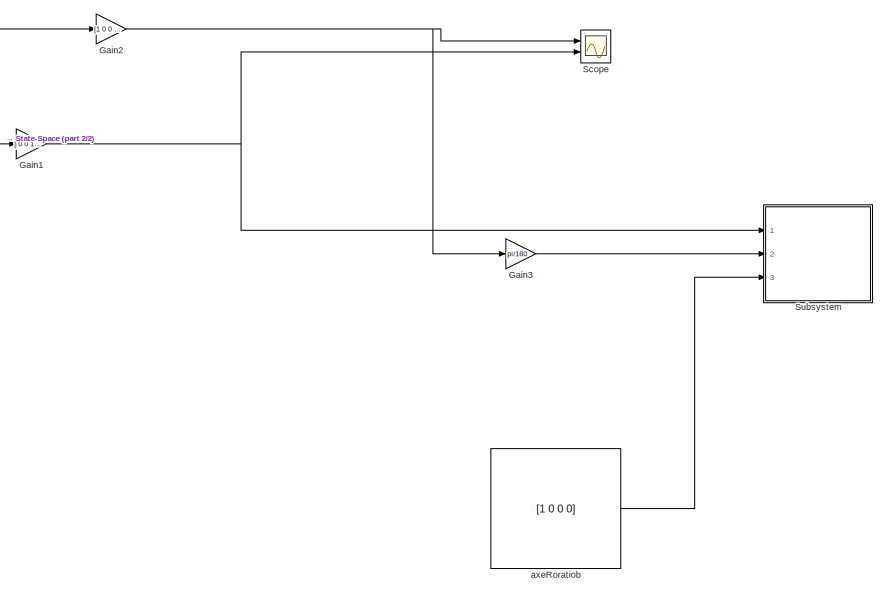
[diagram: root canvas - part 1/2, right side, full height]
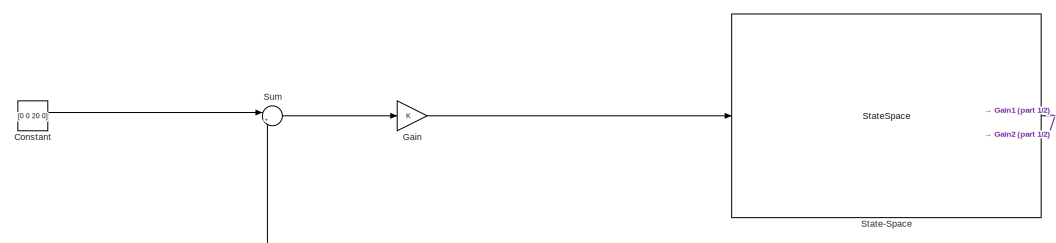
[diagram: root canvas - part 2/2, top left region]
MODEL slx_bc6a4211d6a7
KIND model
CONFIG AbsTol = auto
CONFIG EnableMultiTasking = off
CONFIG FixedStep = auto
CONFIG MaxStep = auto
CONFIG MinStep = auto
CONFIG RelTol = 1e-3
CONFIG SampleTimeConstraint = Unconstrained
CONFIG Solver = VariableStepAuto
CONFIG SolverName = VariableStepAuto
CONFIG StartTime = 0.0
CONFIG StopTime = 100
BLOCK [Constant] Constant
  Value = [0 0 20 0]
BLOCK [Gain] Gain
  Gain = K
  Multiplication = Matrix(K*u)
BLOCK [Gain] Gain1
  Gain = [ 0 0 1 0]
  Multiplication = Matrix(K*u)
BLOCK [Gain] Gain2
  Gain = [1 0 0 0]
  Multiplication = Matrix(K*u)
BLOCK [Gain] Gain3
  Gain = pi/180
BLOCK [Scope] Scope
  Floating = off
  NumInputPorts = 2
  Ports = [2]
  ScopeSpecificationString = Simulink.scopes.TimeScopeBlockCfg('CurrentConfiguration', extmgr.ConfigurationSet(extmgr.Configuration('Core','General UI',true),extmgr.Configuration('Core','Source UI',true),extmgr.Configuration('Sources','WiredSimulink',true),extmgr.Configuration('Visuals','Time Domain',true,'SerializedDisplays',{struct('MinYLimReal','-5.7618','MaxYLimReal','23.8072','YLabelReal','','MinYLimMag','0.00000','MaxYL...<+1371ch>
BLOCK [StateSpace] State-Space
  A = A
  B = B
  C = eye(4)
  D = [0 0 0 0]'
  InitialCondition = [20 0 0 0]
  Ports = [1, 1]
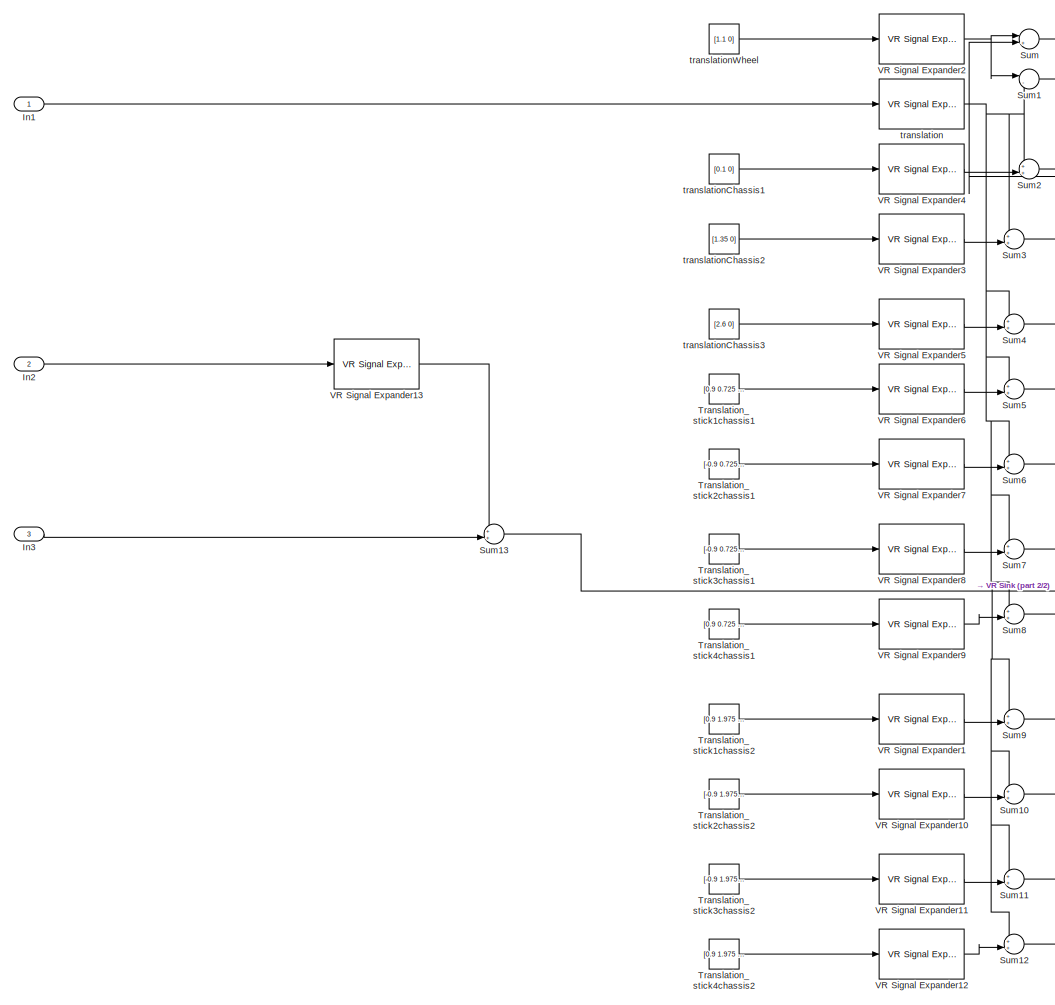
[diagram: Subsystem - part 1/2, left side, full height]
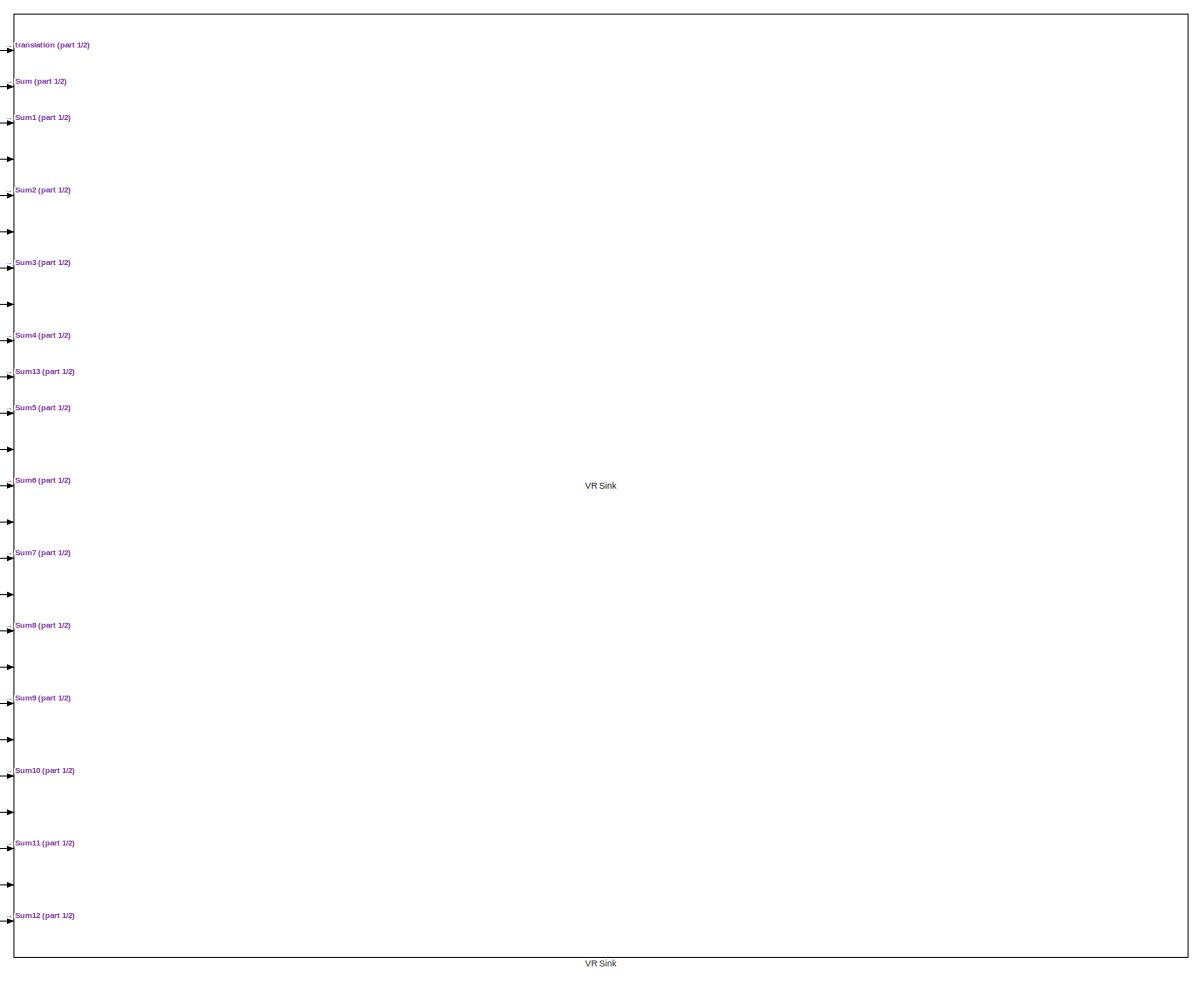
[diagram: Subsystem - part 2/2, right side, full height]
BLOCK [SubSystem] Subsystem
  Ports = [3]
  RequestExecContextInheritance = off
BLOCK [Inport] Subsystem/In1
BLOCK [Inport] Subsystem/In2
  Port = 2
BLOCK [Inport] Subsystem/In3
  Port = 3
BLOCK [Sum] Subsystem/Sum
  Inputs = |++
  Ports = [2, 1]
BLOCK [Sum] Subsystem/Sum1
  Inputs = |-+
  Ports = [2, 1]
BLOCK [Sum] Subsystem/Sum10
  Inputs = ++|
  Ports = [2, 1]
BLOCK [Sum] Subsystem/Sum11
  Inputs = ++|
  Ports = [2, 1]
BLOCK [Sum] Subsystem/Sum12
  Inputs = ++|
  Ports = [2, 1]
BLOCK [Sum] Subsystem/Sum13
  Inputs = ++|
  Ports = [2, 1]
BLOCK [Sum] Subsystem/Sum2
  Inputs = ++|
  Ports = [2, 1]
BLOCK [Sum] Subsystem/Sum3
  Inputs = ++|
  NameLocation = top
  Ports = [2, 1]
BLOCK [Sum] Subsystem/Sum4
  Inputs = ++|
  Ports = [2, 1]
BLOCK [Sum] Subsystem/Sum5
  Inputs = ++|
  Ports = [2, 1]
BLOCK [Sum] Subsystem/Sum6
  Inputs = ++|
  Ports = [2, 1]
BLOCK [Sum] Subsystem/Sum7
  Inputs = ++|
  Ports = [2, 1]
BLOCK [Sum] Subsystem/Sum8
  Inputs = ++|
  Ports = [2, 1]
BLOCK [Sum] Subsystem/Sum9
  Inputs = ++|
  Ports = [2, 1]
BLOCK [Constant] Subsystem/Translation_stick1chassis1
  OutDataTypeStr = Inherit: Inherit via back propagation
  Value = [0.9 0.725 0.375]
BLOCK [Constant] Subsystem/Translation_stick1chassis2
  OutDataTypeStr = Inherit: Inherit via back propagation
  Value = [0.9 1.975 0.375]
BLOCK [Constant] Subsystem/Translation_stick2chassis1
  OutDataTypeStr = Inherit: Inherit via back propagation
  Value = [-0.9 0.725 0.375]
BLOCK [Constant] Subsystem/Translation_stick2chassis2
  OutDataTypeStr = Inherit: Inherit via back propagation
  Value = [-0.9 1.975 0.375]
BLOCK [Constant] Subsystem/Translation_stick3chassis1
  OutDataTypeStr = Inherit: Inherit via back propagation
  Value = [-0.9 0.725 -0.375]
BLOCK [Constant] Subsystem/Translation_stick3chassis2
  OutDataTypeStr = Inherit: Inherit via back propagation
  Value = [-0.9 1.975 -0.375]
BLOCK [Constant] Subsystem/Translation_stick4chassis1
  OutDataTypeStr = Inherit: Inherit via back propagation
  Value = [0.9 0.725 -0.375]
BLOCK [Constant] Subsystem/Translation_stick4chassis2
  OutDataTypeStr = Inherit: Inherit via back propagation
  Value = [0.9 1.975 -0.375]
BLOCK [Reference] Subsystem/VR Signal Expander1  REF=vrlib/VR Signal Expander
  Ports = [1, 1]
  SourceBlock = vrlib/VR Signal Expander
  SourceProductBaseCode = SL
  SourceType = VR Signal Expander
BLOCK [Reference] Subsystem/VR Signal Expander10  REF=vrlib/VR Signal Expander
  Ports = [1, 1]
  SourceBlock = vrlib/VR Signal Expander
  SourceProductBaseCode = SL
  SourceType = VR Signal Expander
BLOCK [Reference] Subsystem/VR Signal Expander11  REF=vrlib/VR Signal Expander
  Ports = [1, 1]
  SourceBlock = vrlib/VR Signal Expander
  SourceProductBaseCode = SL
  SourceType = VR Signal Expander
BLOCK [Reference] Subsystem/VR Signal Expander12  REF=vrlib/VR Signal Expander
  Ports = [1, 1]
  SourceBlock = vrlib/VR Signal Expander
  SourceProductBaseCode = SL
  SourceType = VR Signal Expander
BLOCK [Reference] Subsystem/VR Signal Expander13  REF=vrlib/VR Signal Expander
  Ports = [1, 1]
  SourceBlock = vrlib/VR Signal Expander
  SourceProductBaseCode = SL
  SourceType = VR Signal Expander
BLOCK [Reference] Subsystem/VR Signal Expander2  REF=vrlib/VR Signal Expander
  Ports = [1, 1]
  SourceBlock = vrlib/VR Signal Expander
  SourceProductBaseCode = SL
  SourceType = VR Signal Expander
BLOCK [Reference] Subsystem/VR Signal Expander3  REF=vrlib/VR Signal Expander
  Ports = [1, 1]
  SourceBlock = vrlib/VR Signal Expander
  SourceProductBaseCode = SL
  SourceType = VR Signal Expander
BLOCK [Reference] Subsystem/VR Signal Expander4  REF=vrlib/VR Signal Expander
  Ports = [1, 1]
  SourceBlock = vrlib/VR Signal Expander
  SourceProductBaseCode = SL
  SourceType = VR Signal Expander
BLOCK [Reference] Subsystem/VR Signal Expander5  REF=vrlib/VR Signal Expander
  Ports = [1, 1]
  SourceBlock = vrlib/VR Signal Expander
  SourceProductBaseCode = SL
  SourceType = VR Signal Expander
BLOCK [Reference] Subsystem/VR Signal Expander6  REF=vrlib/VR Signal Expander
  Ports = [1, 1]
  SourceBlock = vrlib/VR Signal Expander
  SourceProductBaseCode = SL
  SourceType = VR Signal Expander
BLOCK [Reference] Subsystem/VR Signal Expander7  REF=vrlib/VR Signal Expander
  Ports = [1, 1]
  SourceBlock = vrlib/VR Signal Expander
  SourceProductBaseCode = SL
  SourceType = VR Signal Expander
BLOCK [Reference] Subsystem/VR Signal Expander8  REF=vrlib/VR Signal Expander
  Ports = [1, 1]
  SourceBlock = vrlib/VR Signal Expander
  SourceProductBaseCode = SL
  SourceType = VR Signal Expander
BLOCK [Reference] Subsystem/VR Signal Expander9  REF=vrlib/VR Signal Expander
  Ports = [1, 1]
  SourceBlock = vrlib/VR Signal Expander
  SourceProductBaseCode = SL
  SourceType = VR Signal Expander
BLOCK [Reference] Subsystem/VR Sink  REF=vrlib/VR Sink
  InstantiateOnLoad = on
  Ports = [25]
  SourceBlock = vrlib/VR Sink
  SourceProductBaseCode = SL
  SourceType = Virtual Reality Sink
BLOCK [Reference] Subsystem/translation  REF=vrlib/VR Signal Expander
  Ports = [1, 1]
  SourceBlock = vrlib/VR Signal Expander
  SourceProductBaseCode = SL
  SourceType = VR Signal Expander
BLOCK [Constant] Subsystem/translationChassis1
  OutDataTypeStr = Inherit: Inherit via back propagation
  Value = [0.1 0]
BLOCK [Constant] Subsystem/translationChassis2
  OutDataTypeStr = Inherit: Inherit via back propagation
  Value = [1.35 0]
BLOCK [Constant] Subsystem/translationChassis3
  OutDataTypeStr = Inherit: Inherit via back propagation
  Value = [2.6 0]
BLOCK [Constant] Subsystem/translationWheel
  OutDataTypeStr = Inherit: Inherit via back propagation
  Value = [1.1 0]
BLOCK [Sum] Sum
  Inputs = |+-
  Ports = [2, 1]
BLOCK [Constant] axeRoratiob
  OutDataTypeStr = Inherit: Inherit via back propagation
  Value = [1 0 0 0]
  VectorParams1D = off
LINE Constant:1 -> Sum:1
NET Gain1:1 -> Scope:2, Subsystem:1
NET Gain2:1 -> Gain3:1, Scope:1
LINE Gain3:1 -> Subsystem:2
LINE Gain:1 -> State-Space:1
NET State-Space:1 -> Gain1:1, Gain2:1, Sum:2
LINE Subsystem/In1:1 -> Subsystem/translation:1
LINE Subsystem/In2:1 -> Subsystem/VR Signal Expander13:1
LINE Subsystem/In3:1 -> Subsystem/Sum13:2
LINE Subsystem/Sum10:1 -> Subsystem/VR Sink:21
LINE Subsystem/Sum11:1 -> Subsystem/VR Sink:23
LINE Subsystem/Sum12:1 -> Subsystem/VR Sink:25
NET Subsystem/Sum13:1 -> Subsystem/VR Sink:10, Subsystem/VR Sink:12, Subsystem/VR Sink:14, Subsystem/VR Sink:16, Subsystem/VR Sink:18, Subsystem/VR Sink:20, Subsystem/VR Sink:22, Subsystem/VR Sink:24, Subsystem/VR Sink:4, Subsystem/VR Sink:6, Subsystem/VR Sink:8
LINE Subsystem/Sum1:1 -> Subsystem/VR Sink:3
LINE Subsystem/Sum2:1 -> Subsystem/VR Sink:5
LINE Subsystem/Sum3:1 -> Subsystem/VR Sink:7
LINE Subsystem/Sum4:1 -> Subsystem/VR Sink:9
LINE Subsystem/Sum5:1 -> Subsystem/VR Sink:11
LINE Subsystem/Sum6:1 -> Subsystem/VR Sink:13
LINE Subsystem/Sum7:1 -> Subsystem/VR Sink:15
LINE Subsystem/Sum8:1 -> Subsystem/VR Sink:17
LINE Subsystem/Sum9:1 -> Subsystem/VR Sink:19
LINE Subsystem/Sum:1 -> Subsystem/VR Sink:2
LINE Subsystem/Translation_stick1chassis1:1 -> Subsystem/VR Signal Expander6:1
LINE Subsystem/Translation_stick1chassis2:1 -> Subsystem/VR Signal Expander1:1
LINE Subsystem/Translation_stick2chassis1:1 -> Subsystem/VR Signal Expander7:1
LINE Subsystem/Translation_stick2chassis2:1 -> Subsystem/VR Signal Expander10:1
LINE Subsystem/Translation_stick3chassis1:1 -> Subsystem/VR Signal Expander8:1
LINE Subsystem/Translation_stick3chassis2:1 -> Subsystem/VR Signal Expander11:1
LINE Subsystem/Translation_stick4chassis1:1 -> Subsystem/VR Signal Expander9:1
LINE Subsystem/Translation_stick4chassis2:1 -> Subsystem/VR Signal Expander12:1
LINE Subsystem/VR Signal Expander10:1 -> Subsystem/Sum10:2
LINE Subsystem/VR Signal Expander11:1 -> Subsystem/Sum11:2
LINE Subsystem/VR Signal Expander12:1 -> Subsystem/Sum12:2
LINE Subsystem/VR Signal Expander13:1 -> Subsystem/Sum13:1
LINE Subsystem/VR Signal Expander1:1 -> Subsystem/Sum9:2
NET Subsystem/VR Signal Expander2:1 -> Subsystem/Sum1:1, Subsystem/Sum:1
LINE Subsystem/VR Signal Expander3:1 -> Subsystem/Sum3:2
LINE Subsystem/VR Signal Expander4:1 -> Subsystem/Sum2:2
LINE Subsystem/VR Signal Expander5:1 -> Subsystem/Sum4:2
LINE Subsystem/VR Signal Expander6:1 -> Subsystem/Sum5:2
LINE Subsystem/VR Signal Expander7:1 -> Subsystem/Sum6:2
LINE Subsystem/VR Signal Expander8:1 -> Subsystem/Sum7:2
LINE Subsystem/VR Signal Expander9:1 -> Subsystem/Sum8:2
NET Subsystem/translation:1 -> Subsystem/Sum10:1, Subsystem/Sum11:1, Subsystem/Sum12:1, Subsystem/Sum1:2, Subsystem/Sum2:1, Subsystem/Sum3:1, Subsystem/Sum4:1, Subsystem/Sum5:1, Subsystem/Sum6:1, Subsystem/Sum7:1, Subsystem/Sum8:1, Subsystem/Sum9:1, Subsystem/Sum:2, Subsystem/VR Sink:1
LINE Subsystem/translationChassis1:1 -> Subsystem/VR Signal Expander4:1
LINE Subsystem/translationChassis2:1 -> Subsystem/VR Signal Expander3:1
LINE Subsystem/translationChassis3:1 -> Subsystem/VR Signal Expander5:1
LINE Subsystem/translationWheel:1 -> Subsystem/VR Signal Expander2:1
LINE Sum:1 -> Gain:1
LINE axeRoratiob:1 -> Subsystem:3
note: NET lines group one-source signal fan-out (src -> all destinations, sorted); 1:1 wires keep LINE
